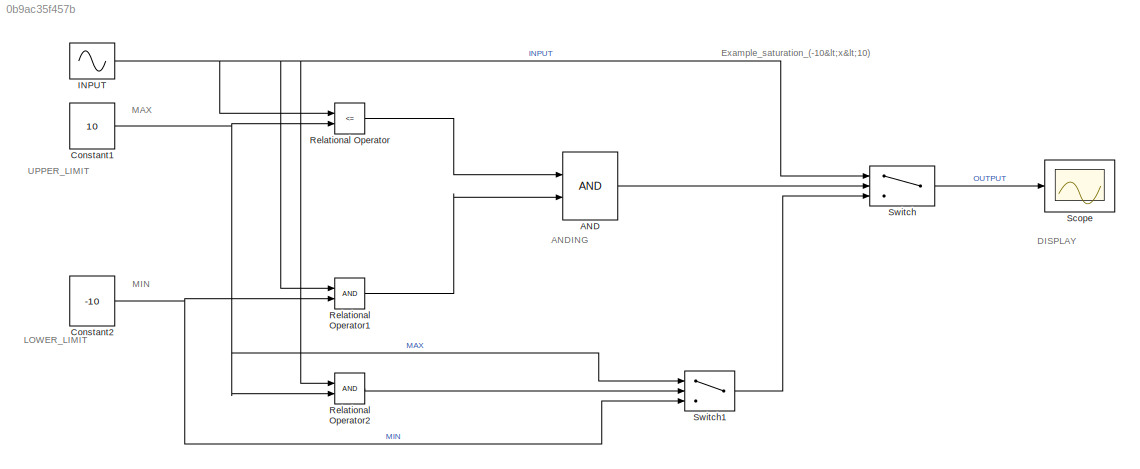
MODEL slx_0b9ac35f457b
KIND model
CONFIG AbsTol = auto
CONFIG EnableMultiTasking = off
CONFIG FixedStep = auto
CONFIG MaxStep = auto
CONFIG MinStep = auto
CONFIG RelTol = 1e-3
CONFIG SampleTimeConstraint = Unconstrained
CONFIG Solver = VariableStepAuto
CONFIG SolverName = VariableStepAuto
CONFIG StartTime = 0.0
CONFIG StopTime = 10.0
BLOCK [Logic] AND
  AllPortsSameDT = off
  IconShape = distinctive
  OutDataTypeStr = boolean
  Ports = [2, 1]
BLOCK [Constant] Constant1
  Value = 10
BLOCK [Constant] Constant2
  Value = -10
BLOCK [Sin] INPUT
  Amplitude = 15
  Ports = [0, 1]
  SampleTime = 0
BLOCK [RelationalOperator] Relational Operator
  InputSameDT = off
  Operator = <=
  OutDataTypeStr = boolean
  Ports = [2, 1]
  RndMeth = Simplest
BLOCK [RelationalOperator] Relational Operator1
  InputSameDT = off
  OutDataTypeStr = boolean
  Ports = [2, 1]
  RndMeth = Simplest
BLOCK [RelationalOperator] Relational Operator2
  InputSameDT = off
  OutDataTypeStr = boolean
  Ports = [2, 1]
  RndMeth = Simplest
BLOCK [Scope] Scope
  Floating = off
  NumInputPorts = 1
  Ports = [1]
  ScopeSpecificationString = Simulink.scopes.TimeScopeBlockCfg('CurrentConfiguration', extmgr.ConfigurationSet(extmgr.Configuration('Core','General UI',true),extmgr.Configuration('Core','Source UI',true),extmgr.Configuration('Sources','WiredSimulink',true),extmgr.Configuration('Visuals','Time Domain',true,'SerializedDisplays',{struct('MinYLimReal','-12.5','MaxYLimReal','12.5','YLabelReal','','MinYLimMag','0.00000','MaxYLimMag...<+1343ch>
BLOCK [Switch] Switch
  Criteria = u2 > Threshold
  InputSameDT = off
  SaturateOnIntegerOverflow = off
BLOCK [Switch] Switch1
  Criteria = u2 > Threshold
  InputSameDT = off
  SaturateOnIntegerOverflow = off
ANNOTATION (root): Example_saturation_(-10<x<10)
ANNOTATION (root): ANDING
ANNOTATION (root): DISPLAY
ANNOTATION (root): LOWER_LIMIT
ANNOTATION (root): MAX
ANNOTATION (root): MIN
ANNOTATION (root): UPPER_LIMIT
LINE AND:1 -> Switch:2
NET Constant1:1 -> Relational Operator2:2, Relational Operator:2, Switch1:1
NET Constant2:1 -> Relational Operator1:2, Switch1:3
NET INPUT:1 -> Relational Operator1:1, Relational Operator2:1, Relational Operator:1, Switch:1
LINE Relational Operator1:1 -> AND:2
LINE Relational Operator2:1 -> Switch1:2
LINE Relational Operator:1 -> AND:1
LINE Switch1:1 -> Switch:3
LINE Switch:1 -> Scope:1
note: NET lines group one-source signal fan-out (src -> all destinations, sorted); 1:1 wires keep LINE
